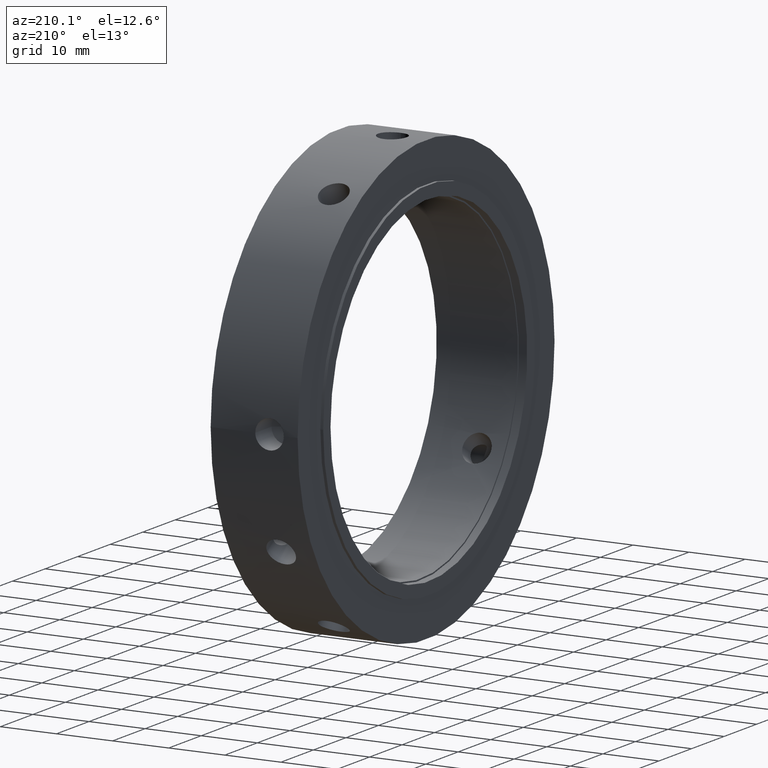
[diagram: clean part render]
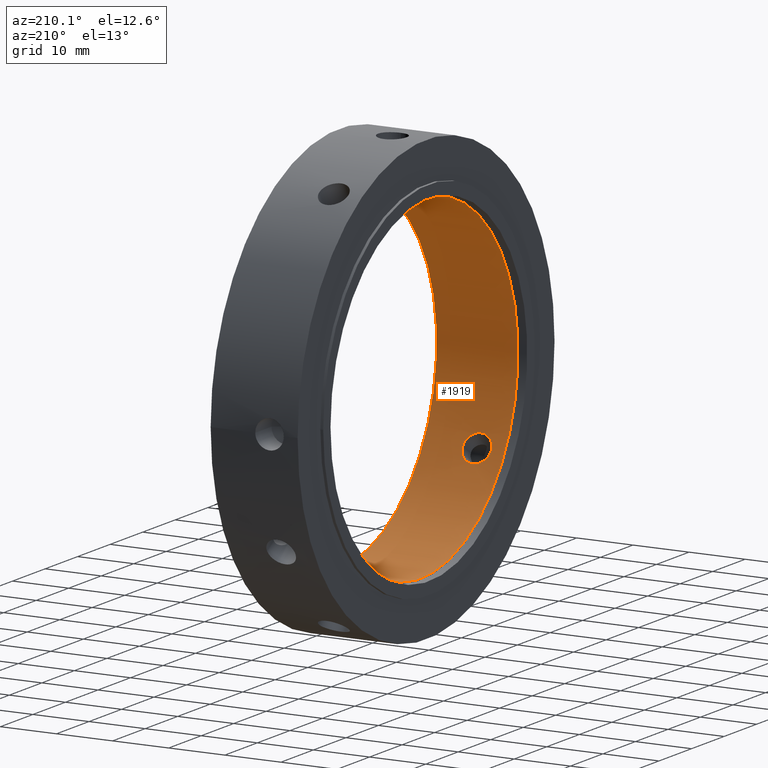
[diagram: same view with one face highlighted and labeled with its STEP entity id]
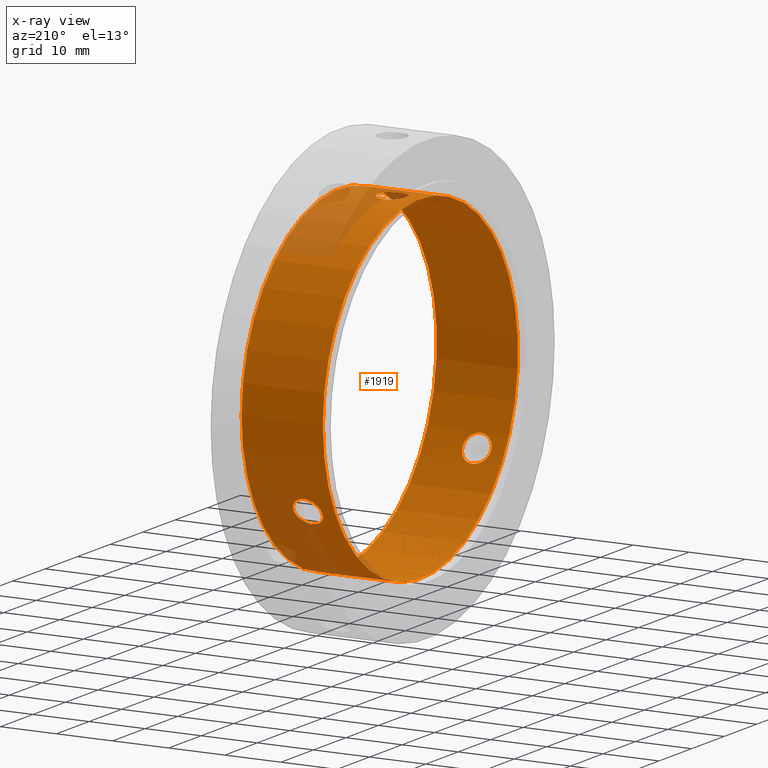
[diagram: x-ray of the same camera — body ghosted, the highlighted face saturated]
A machine part, auxiliary view. The second image highlights one B-rep face of the part: STEP entity #1919.
The next image is the same camera in x-ray: the body ghosted, the highlighted face saturated — about 13% of this face is hidden behind the body in this view.
In plain terms, the highlighted cylindrical surface (bore or boss wall) has radius 30 mm, axis along (1, 0, 0).
Its self-contained STEP definition (entity closure, byte-faithful):
#1299=CARTESIAN_POINT('',(6.499999999999987,27.161736468701491,-12.737349488995413));
#1300=VERTEX_POINT('',#1299);
#1301=CARTESIAN_POINT('',(6.499999999999986,27.161736468701481,-12.737349488995415));
#1302=CARTESIAN_POINT('',(6.820349864326777,27.161736468701481,-12.737349488995415));
#1303=CARTESIAN_POINT('',(7.161946621871284,27.13462886681544,-12.7956617032567));
#1304=CARTESIAN_POINT('',(7.790167983699949,27.022242264997971,-13.031326297905096));
#1305=CARTESIAN_POINT('',(8.076805770877581,26.93670982454206,-13.208522578102681));
#1306=CARTESIAN_POINT('',(8.529438412104655,26.733996454333784,-13.614141113757515));
#1307=CARTESIAN_POINT('',(8.72566142380145,26.60323652638434,-13.869627845721853));
#1308=CARTESIAN_POINT('',(8.985946487586713,26.306835926373083,-14.423909102563005));
#1309=CARTESIAN_POINT('',(9.049999999999987,26.140936761840898,-14.722569371046506));
#1310=CARTESIAN_POINT('',(9.049999999999987,25.820587465225387,-15.277430628953521));
#1311=CARTESIAN_POINT('',(8.985946487586713,25.644889667883678,-15.570433654146758));
#1312=CARTESIAN_POINT('',(8.725661423801455,25.313068318623305,-16.104264731874032));
#1313=CARTESIAN_POINT('',(8.529438412104655,25.157190282387059,-16.345249517257439));
#1314=CARTESIAN_POINT('',(8.076805770877582,24.907271011368266,-16.723613713371989));
#1315=CARTESIAN_POINT('',(7.790167983699953,24.796580751488996,-16.886285119753271));
#1316=CARTESIAN_POINT('',(7.161946621871287,24.648682526659659,-17.101447069296412));
#1317=CARTESIAN_POINT('',(6.820349864326778,24.61173646870148,-17.154079048296037));
#1318=CARTESIAN_POINT('',(6.179650135673196,24.611736468701487,-17.154079048296037));
#1319=CARTESIAN_POINT('',(5.838053378128684,24.648682526659659,-17.101447069296412));
#1320=CARTESIAN_POINT('',(5.20983201630002,24.796580751488996,-16.886285119753271));
#1321=CARTESIAN_POINT('',(4.923194229122391,24.907271011368266,-16.723613713371989));
#1322=CARTESIAN_POINT('',(4.47056158789532,25.157190282387056,-16.345249517257439));
#1323=CARTESIAN_POINT('',(4.274338576198518,25.313068318623312,-16.104264731874032));
#1324=CARTESIAN_POINT('',(4.014053512413259,25.644889667883689,-15.570433654146758));
#1325=CARTESIAN_POINT('',(3.949999999999987,25.820587465225387,-15.277430628953521));
#1326=CARTESIAN_POINT('',(3.949999999999988,26.140936761840901,-14.722569371046504));
#1327=CARTESIAN_POINT('',(4.014053512413261,26.306835926373083,-14.423909102563005));
#1328=CARTESIAN_POINT('',(4.274338576198524,26.60323652638434,-13.869627845721853));
#1329=CARTESIAN_POINT('',(4.470561587895318,26.733996454333784,-13.614141113757515));
#1330=CARTESIAN_POINT('',(4.923194229122393,26.93670982454206,-13.208522578102681));
#1331=CARTESIAN_POINT('',(5.209832016300027,27.022242264997971,-13.031326297905096));
#1332=CARTESIAN_POINT('',(5.838053378128691,27.13462886681544,-12.795661703256702));
#1333=CARTESIAN_POINT('',(6.179650135673196,27.161736468701481,-12.737349488995415));
#1334=CARTESIAN_POINT('',(6.499999999999987,27.161736468701481,-12.737349488995415));
#1335=B_SPLINE_CURVE_WITH_KNOTS('',3,(#1301,#1302,#1303,#1304,#1305,#1306,#1307,#1308,#1309,#1310,#1311,#1312,#1313,#1314,#1315,#1316,#1317,#1318,#1319,#1320,#1321,#1322,#1323,#1324,#1325,#1326,#1327,#1328,#1329,#1330,#1331,#1332,#1333,#1334),.UNSPECIFIED.,.T.,.U.,(4,2,2,2,2,2,2,2,2,2,2,2,2,2,2,2,4),(0.0,0.096104959298037,0.192209918596074,0.288314707580727,0.384419496565381,0.480524285550034,0.576629074534686,0.672734033832724,0.768838993130761,0.864943952428798,0.961048911726835,1.057153700711488,1.153258489696141,1.249363278680795,1.345468067665448,1.441573026963485,1.537677986261522),.UNSPECIFIED.);
#1336=EDGE_CURVE('',#1300,#1300,#1335,.T.);
#1456=CARTESIAN_POINT('',(6.499999999999987,-24.611736468701505,-17.154079048296026));
#1457=VERTEX_POINT('',#1456);
#1458=CARTESIAN_POINT('',(6.499999999999986,-24.611736468701494,-17.154079048296026));
#1459=CARTESIAN_POINT('',(6.820349864326777,-24.611736468701494,-17.154079048296026));
#1460=CARTESIAN_POINT('',(7.161946621871284,-24.64868252665967,-17.101447069296391));
#1461=CARTESIAN_POINT('',(7.790167983699949,-24.796580751489007,-16.886285119753254));
#1462=CARTESIAN_POINT('',(8.076805770877582,-24.907271011368273,-16.723613713371975));
#1463=CARTESIAN_POINT('',(8.529438412104655,-25.15719028238707,-16.345249517257425));
#1464=CARTESIAN_POINT('',(8.725661423801451,-25.313068318623316,-16.104264731874018));
#1465=CARTESIAN_POINT('',(8.985946487586713,-25.644889667883692,-15.57043365414674));
#1466=CARTESIAN_POINT('',(9.049999999999987,-25.820587465225397,-15.277430628953503));
#1467=CARTESIAN_POINT('',(9.049999999999987,-26.140936761840912,-14.722569371046486));
#1468=CARTESIAN_POINT('',(8.985946487586713,-26.306835926373097,-14.42390910256298));
#1469=CARTESIAN_POINT('',(8.725661423801451,-26.603236526384354,-13.869627845721826));
#1470=CARTESIAN_POINT('',(8.529438412104653,-26.733996454333795,-13.614141113757498));
#1471=CARTESIAN_POINT('',(8.076805770877581,-26.936709824542078,-13.208522578102661));
#1472=CARTESIAN_POINT('',(7.790167983699949,-27.022242264997981,-13.031326297905073));
#1473=CARTESIAN_POINT('',(7.161946621871284,-27.134628866815454,-12.795661703256675));
#1474=CARTESIAN_POINT('',(6.820349864326778,-27.161736468701491,-12.737349488995379));
#1475=CARTESIAN_POINT('',(6.179650135673196,-27.161736468701491,-12.737349488995379));
#1476=CARTESIAN_POINT('',(5.838053378128691,-27.134628866815454,-12.795661703256675));
#1477=CARTESIAN_POINT('',(5.209832016300025,-27.022242264997981,-13.031326297905073));
#1478=CARTESIAN_POINT('',(4.923194229122395,-26.936709824542078,-13.208522578102661));
#1479=CARTESIAN_POINT('',(4.470561587895322,-26.733996454333795,-13.614141113757498));
#1480=CARTESIAN_POINT('',(4.274338576198522,-26.603236526384354,-13.869627845721828));
#1481=CARTESIAN_POINT('',(4.014053512413262,-26.306835926373097,-14.423909102562982));
#1482=CARTESIAN_POINT('',(3.949999999999987,-26.140936761840912,-14.722569371046482));
#1483=CARTESIAN_POINT('',(3.949999999999986,-25.820587465225397,-15.277430628953502));
#1484=CARTESIAN_POINT('',(4.014053512413259,-25.644889667883703,-15.570433654146736));
#1485=CARTESIAN_POINT('',(4.27433857619852,-25.313068318623323,-16.104264731874014));
#1486=CARTESIAN_POINT('',(4.470561587895317,-25.15719028238707,-16.345249517257425));
#1487=CARTESIAN_POINT('',(4.923194229122391,-24.907271011368273,-16.723613713371975));
#1488=CARTESIAN_POINT('',(5.209832016300023,-24.796580751489007,-16.886285119753254));
#1489=CARTESIAN_POINT('',(5.83805337812869,-24.64868252665967,-17.101447069296391));
#1490=CARTESIAN_POINT('',(6.179650135673197,-24.611736468701494,-17.154079048296026));
#1491=CARTESIAN_POINT('',(6.499999999999988,-24.611736468701494,-17.154079048296026));
#1492=B_SPLINE_CURVE_WITH_KNOTS('',3,(#1458,#1459,#1460,#1461,#1462,#1463,#1464,#1465,#1466,#1467,#1468,#1469,#1470,#1471,#1472,#1473,#1474,#1475,#1476,#1477,#1478,#1479,#1480,#1481,#1482,#1483,#1484,#1485,#1486,#1487,#1488,#1489,#1490,#1491),.UNSPECIFIED.,.T.,.U.,(4,2,2,2,2,2,2,2,2,2,2,2,2,2,2,2,4),(0.0,0.096104959298037,0.192209918596075,0.288314707580728,0.384419496565381,0.480524285550034,0.576629074534687,0.672734033832724,0.768838993130762,0.864943952428799,0.961048911726836,1.057153700711489,1.153258489696142,1.249363278680796,1.345468067665449,1.441573026963486,1.537677986261524),.UNSPECIFIED.);
#1493=EDGE_CURVE('',#1457,#1457,#1492,.T.);
#1613=CARTESIAN_POINT('',(6.499999999999987,-2.55,29.891428537291421));
#1614=VERTEX_POINT('',#1613);
#1615=CARTESIAN_POINT('',(6.499999999999987,-2.549999999999999,29.891428537291421));
#1616=CARTESIAN_POINT('',(6.820349864326778,-2.549999999999999,29.891428537291421));
#1617=CARTESIAN_POINT('',(7.161946621871286,-2.485946340155781,29.897108772553072));
#1618=CARTESIAN_POINT('',(7.790167983699952,-2.22566151350897,29.917611417658332));
#1619=CARTESIAN_POINT('',(8.076805770877581,-2.029438813173799,29.932136291474638));
#1620=CARTESIAN_POINT('',(8.529438412104653,-1.576806171946726,29.959390631014926));
#1621=CARTESIAN_POINT('',(8.725661423801455,-1.290168207761029,29.973892577595858));
#1622=CARTESIAN_POINT('',(8.985946487586716,-0.661946258489393,29.994342756709734));
#1623=CARTESIAN_POINT('',(9.049999999999987,-0.32034929661551,30.0));
#1624=CARTESIAN_POINT('',(9.049999999999987,0.32034929661551,30.0));
#1625=CARTESIAN_POINT('',(8.985946487586716,0.661946258489393,29.994342756709727));
#1626=CARTESIAN_POINT('',(8.725661423801455,1.290168207761028,29.973892577595848));
#1627=CARTESIAN_POINT('',(8.529438412104653,1.576806171946726,29.959390631014926));
#1628=CARTESIAN_POINT('',(8.076805770877581,2.029438813173798,29.932136291474638));
#1629=CARTESIAN_POINT('',(7.790167983699949,2.225661513508971,29.917611417658332));
#1630=CARTESIAN_POINT('',(7.161946621871285,2.485946340155781,29.897108772553072));
#1631=CARTESIAN_POINT('',(6.820349864326778,2.55,29.891428537291418));
#1632=CARTESIAN_POINT('',(6.179650135673196,2.55,29.891428537291421));
#1633=CARTESIAN_POINT('',(5.838053378128688,2.485946340155781,29.897108772553072));
#1634=CARTESIAN_POINT('',(5.209832016300021,2.225661513508969,29.917611417658332));
#1635=CARTESIAN_POINT('',(4.923194229122393,2.029438813173799,29.932136291474638));
#1636=CARTESIAN_POINT('',(4.470561587895321,1.576806171946727,29.959390631014926));
#1637=CARTESIAN_POINT('',(4.27433857619852,1.290168207761029,29.973892577595848));
#1638=CARTESIAN_POINT('',(4.014053512413259,0.661946258489394,29.994342756709727));
#1639=CARTESIAN_POINT('',(3.949999999999987,0.320349296615511,30.0));
#1640=CARTESIAN_POINT('',(3.949999999999987,-0.320349296615509,30.0));
#1641=CARTESIAN_POINT('',(4.014053512413259,-0.661946258489393,29.994342756709727));
#1642=CARTESIAN_POINT('',(4.27433857619852,-1.290168207761029,29.973892577595848));
#1643=CARTESIAN_POINT('',(4.47056158789532,-1.576806171946726,29.959390631014926));
#1644=CARTESIAN_POINT('',(4.923194229122393,-2.029438813173799,29.932136291474638));
#1645=CARTESIAN_POINT('',(5.209832016300022,-2.225661513508969,29.917611417658332));
#1646=CARTESIAN_POINT('',(5.83805337812869,-2.485946340155781,29.897108772553072));
#1647=CARTESIAN_POINT('',(6.179650135673197,-2.55,29.891428537291421));
#1648=CARTESIAN_POINT('',(6.499999999999988,-2.55,29.891428537291421));
#1649=B_SPLINE_CURVE_WITH_KNOTS('',3,(#1615,#1616,#1617,#1618,#1619,#1620,#1621,#1622,#1623,#1624,#1625,#1626,#1627,#1628,#1629,#1630,#1631,#1632,#1633,#1634,#1635,#1636,#1637,#1638,#1639,#1640,#1641,#1642,#1643,#1644,#1645,#1646,#1647,#1648),.UNSPECIFIED.,.T.,.U.,(4,2,2,2,2,2,2,2,2,2,2,2,2,2,2,2,4),(0.0,0.096104959298037,0.192209918596075,0.288314707580728,0.384419496565381,0.480524285550034,0.576629074534687,0.672734033832724,0.768838993130761,0.864943952428799,0.961048911726836,1.057153700711489,1.153258489696142,1.249363278680795,1.345468067665448,1.441573026963485,1.537677986261523),.UNSPECIFIED.);
#1650=EDGE_CURVE('',#1614,#1614,#1649,.T.);
#1671=CARTESIAN_POINT('',(1.499999999999991,30.0,0.0));
#1672=VERTEX_POINT('',#1671);
#1673=CARTESIAN_POINT('',(1.499999999999991,0.0,0.0));
#1674=DIRECTION('',(1.0,0.0,0.0));
#1675=DIRECTION('',(0.0,1.0,0.0));
#1676=AXIS2_PLACEMENT_3D('',#1673,#1674,#1675);
#1677=CIRCLE('',#1676,30.0);
#1678=EDGE_CURVE('',#1672,#1672,#1677,.T.);
#1887=CARTESIAN_POINT('',(15.999999999999995,30.0,0.0));
#1888=VERTEX_POINT('',#1887);
#1889=CARTESIAN_POINT('',(15.999999999999995,0.0,0.0));
#1890=DIRECTION('',(1.0,0.0,0.0));
#1891=DIRECTION('',(0.0,1.0,0.0));
#1892=AXIS2_PLACEMENT_3D('',#1889,#1890,#1891);
#1893=CIRCLE('',#1892,30.0);
#1894=EDGE_CURVE('',#1888,#1888,#1893,.T.);
#1899=CARTESIAN_POINT('',(8.749999999999993,0.0,0.0));
#1900=DIRECTION('',(1.0,0.0,0.0));
#1901=DIRECTION('',(0.0,1.0,0.0));
#1902=AXIS2_PLACEMENT_3D('',#1899,#1900,#1901);
#1903=CYLINDRICAL_SURFACE('',#1902,30.0);
#1904=ORIENTED_EDGE('',*,*,#1678,.F.);
#1905=EDGE_LOOP('',(#1904));
#1906=FACE_OUTER_BOUND('',#1905,.T.);
#1907=ORIENTED_EDGE('',*,*,#1336,.T.);
#1908=EDGE_LOOP('',(#1907));
#1909=FACE_BOUND('',#1908,.T.);
#1910=ORIENTED_EDGE('',*,*,#1493,.T.);
#1911=EDGE_LOOP('',(#1910));
#1912=FACE_BOUND('',#1911,.T.);
#1913=ORIENTED_EDGE('',*,*,#1650,.T.);
#1914=EDGE_LOOP('',(#1913));
#1915=FACE_BOUND('',#1914,.T.);
#1916=ORIENTED_EDGE('',*,*,#1894,.T.);
#1917=EDGE_LOOP('',(#1916));
#1918=FACE_BOUND('',#1917,.T.);
#1919=ADVANCED_FACE('',(#1906,#1909,#1912,#1915,#1918),#1903,.F.);